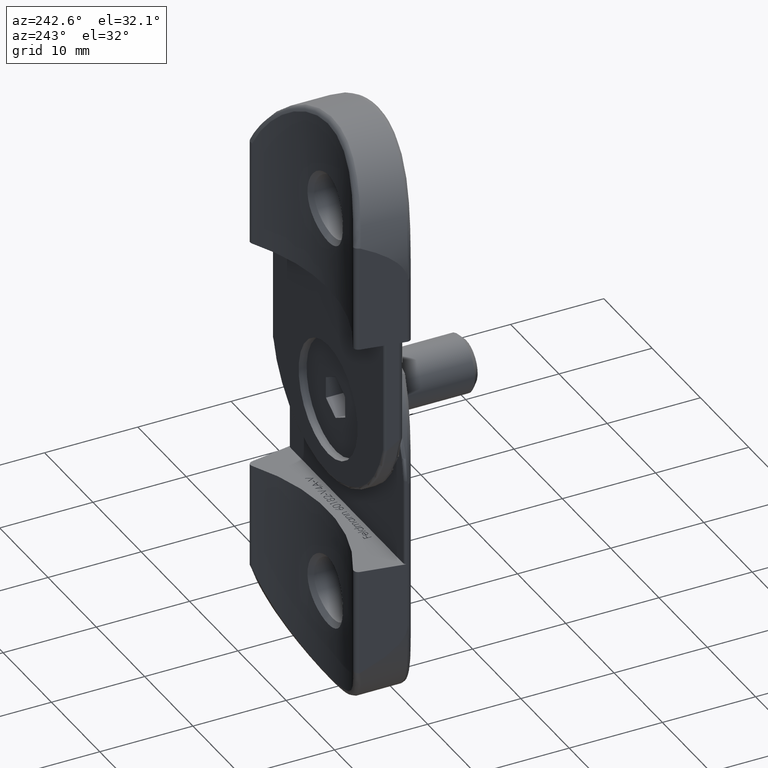
[diagram: clean part render]
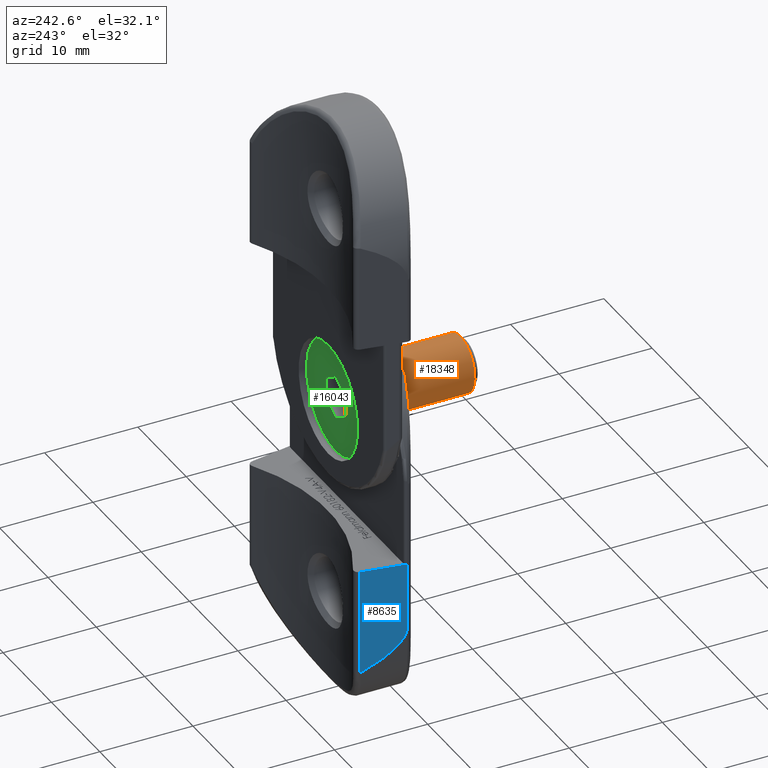
[diagram: same view with three faces highlighted in distinct colors, each labeled with its STEP entity id]
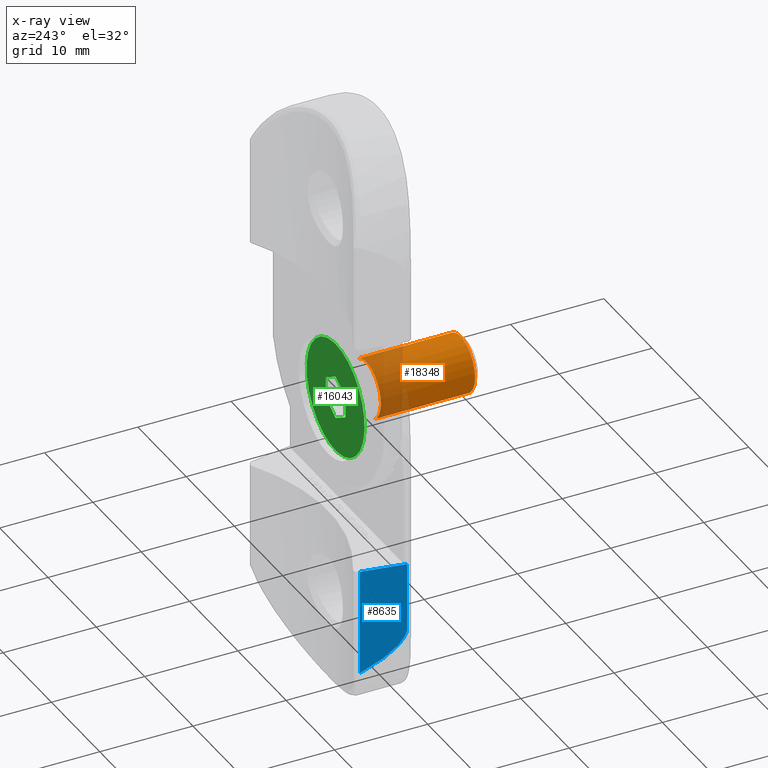
[diagram: x-ray of the same camera — body ghosted, the three highlighted faces saturated]
A machine part, auxiliary view with three faces highlighted in distinct colors.
The next image is the same camera in x-ray (body ghosted, the three faces saturated) — at least one of them is partly hidden behind the body in this view.
Their STEP definitions:

[orange] entity #18348 — the highlighted cylindrical surface (edge-blend (fillet) strip) has radius 3 mm, axis along (-0, 1, 0).
#298 = CIRCLE ( 'NONE', #8305, 2.999999999999996447 ) ;
#476 = ORIENTED_EDGE ( 'NONE', *, *, #12842, .F. ) ;
#634 = DIRECTION ( 'NONE',  ( -0.000000000000000000, 1.224646799147353207E-16, -1.000000000000000000 ) ) ;
#2196 = CIRCLE ( 'NONE', #7456, 2.999999999999992895 ) ;
#2709 = CARTESIAN_POINT ( 'NONE',  ( 3.673940397442055431E-16, -2.999999999999996447, -3.673940397442055431E-16 ) ) ;
#3184 = CARTESIAN_POINT ( 'NONE',  ( 0.000000000000000000, -1.641026710857453312E-15, 13.40000000000000036 ) ) ;
#3425 = ORIENTED_EDGE ( 'NONE', *, *, #16008, .F. ) ;
#3638 = CARTESIAN_POINT ( 'NONE',  ( 0.000000000000000000, 0.000000000000000000, 0.000000000000000000 ) ) ;
#4136 = DIRECTION ( 'NONE',  ( 0.000000000000000000, 1.000000000000000000, 1.445602896647342614E-16 ) ) ;
#4554 = FACE_OUTER_BOUND ( 'NONE', #17416, .T. ) ;
#4648 = VECTOR ( 'NONE', #14553, 1000.000000000000000 ) ;
#6318 = VERTEX_POINT ( 'NONE', #13698 ) ;
#7335 = LINE ( 'NONE', #2709, #4648 ) ;
#7456 = AXIS2_PLACEMENT_3D ( 'NONE', #16165, #7629, #4136 ) ;
#7629 = DIRECTION ( 'NONE',  ( -0.000000000000000000, 1.224646799147353207E-16, -1.000000000000000000 ) ) ;
#8305 = AXIS2_PLACEMENT_3D ( 'NONE', #3184, #8565, #10078 ) ;
#8502 = EDGE_CURVE ( 'NONE', #17872, #6318, #14904, .T. ) ;
#8565 = DIRECTION ( 'NONE',  ( -0.000000000000000000, 1.224646799147353454E-16, -1.000000000000000000 ) ) ;
#10078 = DIRECTION ( 'NONE',  ( 0.000000000000000000, -1.000000000000000000, 0.000000000000000000 ) ) ;
#10155 = VECTOR ( 'NONE', #634, 1000.000000000000000 ) ;
#11441 = ORIENTED_EDGE ( 'NONE', *, *, #18151, .T. ) ;
#12842 = EDGE_CURVE ( 'NONE', #21598, #13877, #7335, .T. ) ;
#13013 = CARTESIAN_POINT ( 'NONE',  ( 3.673940397442056417E-16, -2.999999999999998224, 13.40000000000000036 ) ) ;
#13698 = CARTESIAN_POINT ( 'NONE',  ( 0.000000000000000000, 2.999999999999992450, 3.299999999999998046 ) ) ;
#13744 = CARTESIAN_POINT ( 'NONE',  ( 3.673940397442053459E-16, -2.999999999999993339, 3.299999999999997158 ) ) ;
#13877 = VERTEX_POINT ( 'NONE', #13744 ) ;
#14553 = DIRECTION ( 'NONE',  ( -0.000000000000000000, 1.224646799147353207E-16, -1.000000000000000000 ) ) ;
#14904 = LINE ( 'NONE', #17003, #10155 ) ;
#16008 = EDGE_CURVE ( 'NONE', #13877, #6318, #2196, .T. ) ;
#16165 = CARTESIAN_POINT ( 'NONE',  ( 0.000000000000000000, -4.041334437186262551E-16, 3.299999999999997602 ) ) ;
#17003 = CARTESIAN_POINT ( 'NONE',  ( 0.000000000000000000, 2.999999999999996447, 3.673940397442055431E-16 ) ) ;
#17252 = CYLINDRICAL_SURFACE ( 'NONE', #20325, 2.999999999999996447 ) ;
#17416 = EDGE_LOOP ( 'NONE', ( #476, #11441, #18145, #3425 ) ) ;
#17872 = VERTEX_POINT ( 'NONE', #18908 ) ;
#18145 = ORIENTED_EDGE ( 'NONE', *, *, #8502, .T. ) ;
#18151 = EDGE_CURVE ( 'NONE', #21598, #17872, #298, .T. ) ;
#18348 = ADVANCED_FACE ( 'NONE', ( #4554 ), #17252, .T. ) ;
#18908 = CARTESIAN_POINT ( 'NONE',  ( 0.000000000000000000, 2.999999999999994671, 13.40000000000000036 ) ) ;
#20325 = AXIS2_PLACEMENT_3D ( 'NONE', #3638, #20362, #20572 ) ;
#20362 = DIRECTION ( 'NONE',  ( -0.000000000000000000, 1.224646799147353207E-16, -1.000000000000000000 ) ) ;
#20572 = DIRECTION ( 'NONE',  ( 0.000000000000000000, 1.000000000000000000, 1.224646799147353207E-16 ) ) ;
#21598 = VERTEX_POINT ( 'NONE', #13013 ) ;

[blue] entity #8635 — the highlighted planar face has unit normal (0.9848, -0.1736, 0).
#606 = CARTESIAN_POINT ( 'NONE',  ( 11.99240387650610806, 3.245583679713129222, 7.426906620657627300 ) ) ;
#949 = CARTESIAN_POINT ( 'NONE',  ( 11.17627156864104698, 7.874099999710949760, 11.36522091286671809 ) ) ;
#1041 = CARTESIAN_POINT ( 'NONE',  ( 11.99125585145744388, 3.252094453300075294, 0.000000000000000000 ) ) ;
#1323 = VECTOR ( 'NONE', #21159, 1000.000000000000000 ) ;
#1669 = CARTESIAN_POINT ( 'NONE',  ( 11.18377729768530493, 7.831532895039281073, 11.35007187938070849 ) ) ;
#1712 = CARTESIAN_POINT ( 'NONE',  ( 11.99140904605622104, 3.251225643557166478, -9.316842859180725966 ) ) ;
#2150 = VECTOR ( 'NONE', #3640, 1000.000000000000000 ) ;
#2247 = CARTESIAN_POINT ( 'NONE',  ( 11.99174085408389168, 3.249343866722239405, -9.316446948449293330 ) ) ;
#2309 = ORIENTED_EDGE ( 'NONE', *, *, #11983, .T. ) ;
#2412 = CARTESIAN_POINT ( 'NONE',  ( 11.99125585145744388, 3.252094453300075294, 0.000000000000000000 ) ) ;
#2546 = ORIENTED_EDGE ( 'NONE', *, *, #10085, .T. ) ;
#2979 = CARTESIAN_POINT ( 'NONE',  ( 11.17225821709481259, 7.896860847370852809, 11.36687246722910238 ) ) ;
#3379 = CARTESIAN_POINT ( 'NONE',  ( 11.99189295229135865, 3.248481274923432860, -9.316037376869431341 ) ) ;
#3640 = DIRECTION ( 'NONE',  ( 0.000000000000000000, 0.000000000000000000, -1.000000000000000000 ) ) ;
#5231 = B_SPLINE_CURVE_WITH_KNOTS ( 'NONE', 3,
 ( #5251, #12325, #10723, #3379, #2247, #14105, #1712, #5706, #20922, #11936 ),
 .UNSPECIFIED., .F., .F.,
 ( 4, 3, 3, 4 ),
 ( 8.673617379884035472E-19, 3.520789185538194860E-06, 6.426839419230669921E-06, 7.300392551040201238E-06 ),
 .UNSPECIFIED. ) ;
#5251 = CARTESIAN_POINT ( 'NONE',  ( 11.99240387650610629, 3.245583679713128333, -9.314103764981537026 ) ) ;
#5706 = CARTESIAN_POINT ( 'NONE',  ( 11.99135821657866785, 3.251513911849118532, -9.316875254260967409 ) ) ;
#5734 = VECTOR ( 'NONE', #12417, 1000.000000000000000 ) ;
#5878 = VERTEX_POINT ( 'NONE', #1669 ) ;
#5906 = LINE ( 'NONE', #2412, #1323 ) ;
#6063 = CARTESIAN_POINT ( 'NONE',  ( 11.04724486854863663, 8.605846778190315405, 19.00000000000000000 ) ) ;
#6203 = FACE_OUTER_BOUND ( 'NONE', #19551, .T. ) ;
#6913 = ORIENTED_EDGE ( 'NONE', *, *, #9530, .T. ) ;
#7071 = CARTESIAN_POINT ( 'NONE',  ( 11.99240387650610629, 3.245583679713128333, 19.00000000000000000 ) ) ;
#7200 = CARTESIAN_POINT ( 'NONE',  ( 11.18010637547634545, 7.852351729424181137, 11.35950960312285041 ) ) ;
#7453 = CARTESIAN_POINT ( 'NONE',  ( 11.17225821709481259, 7.896860847370852809, 11.36687246722910238 ) ) ;
#7697 = DIRECTION ( 'NONE',  ( -0.9848077530122085754, -0.1736481776669279165, 0.000000000000000000 ) ) ;
#7787 = VERTEX_POINT ( 'NONE', #11176 ) ;
#8394 = LINE ( 'NONE', #10744, #5734 ) ;
#8555 = VERTEX_POINT ( 'NONE', #1041 ) ;
#8635 = ADVANCED_FACE ( 'NONE', ( #6203 ), #9512, .F. ) ;
#8882 = CARTESIAN_POINT ( 'NONE',  ( 11.99125585145744388, 3.252094453300075294, -9.316890673528464006 ) ) ;
#8937 = CARTESIAN_POINT ( 'NONE',  ( 11.17225821709481259, 7.896860847370852809, 0.000000000000000000 ) ) ;
#9095 = LINE ( 'NONE', #7071, #2150 ) ;
#9512 = PLANE ( 'NONE',  #12142 ) ;
#9530 = EDGE_CURVE ( 'NONE', #5878, #13628, #9698, .T. ) ;
#9534 = B_SPLINE_CURVE_WITH_KNOTS ( 'NONE', 3,
 ( #7453, #949, #7200, #13972 ),
 .UNSPECIFIED., .F., .F.,
 ( 4, 4 ),
 ( 0.000000000000000000, 6.843018577746274298E-05 ),
 .UNSPECIFIED. ) ;
#9698 =( BOUNDED_CURVE ( )  B_SPLINE_CURVE ( 3, ( #15689, #12341, #18872, #17296 ),
 .UNSPECIFIED., .F., .T. ) 
 B_SPLINE_CURVE_WITH_KNOTS ( ( 4, 4 ),
 ( 5.912229931201245847, 6.247602246993458230 ),
 .UNSPECIFIED. ) 
 CURVE ( )  GEOMETRIC_REPRESENTATION_ITEM ( )  RATIONAL_B_SPLINE_CURVE ( ( 1.000000000000000000, 0.9906490596399377679, 0.9906490596399377679, 1.000000000000000000 ) ) 
 REPRESENTATION_ITEM ( '' )  );
#9701 = ORIENTED_EDGE ( 'NONE', *, *, #16533, .T. ) ;
#10085 = EDGE_CURVE ( 'NONE', #7787, #13599, #5231, .T. ) ;
#10723 = CARTESIAN_POINT ( 'NONE',  ( 11.99207755976709677, 3.247434313902512137, -9.315540264005633730 ) ) ;
#10744 = CARTESIAN_POINT ( 'NONE',  ( 11.17225821709481259, 7.896860847370852809, 19.00000000000000000 ) ) ;
#11176 = CARTESIAN_POINT ( 'NONE',  ( 11.99240387650610629, 3.245583679713128333, -9.314103764981537026 ) ) ;
#11936 = CARTESIAN_POINT ( 'NONE',  ( 11.99125585145744388, 3.252094453300075294, -9.316890673528464006 ) ) ;
#11983 = EDGE_CURVE ( 'NONE', #13599, #8555, #5906, .T. ) ;
#12142 = AXIS2_PLACEMENT_3D ( 'NONE', #6063, #7697, #14470 ) ;
#12325 = CARTESIAN_POINT ( 'NONE',  ( 11.99224841747088455, 3.246465331713269453, -9.314862613278492631 ) ) ;
#12341 = CARTESIAN_POINT ( 'NONE',  ( 11.67236817062227949, 5.060596360120618087, 10.09393366738713027 ) ) ;
#12417 = DIRECTION ( 'NONE',  ( -0.000000000000000000, -0.000000000000000000, 1.000000000000000000 ) ) ;
#12583 = EDGE_CURVE ( 'NONE', #16748, #15725, #8394, .T. ) ;
#13599 = VERTEX_POINT ( 'NONE', #8882 ) ;
#13628 = VERTEX_POINT ( 'NONE', #606 ) ;
#13717 = EDGE_CURVE ( 'NONE', #15725, #5878, #9534, .T. ) ;
#13972 = CARTESIAN_POINT ( 'NONE',  ( 11.18377729768530493, 7.831532895039281073, 11.35007187938070849 ) ) ;
#14105 = CARTESIAN_POINT ( 'NONE',  ( 11.99157593222023799, 3.250279185089228751, -9.316736497853899124 ) ) ;
#14435 = EDGE_CURVE ( 'NONE', #8555, #16748, #18064, .T. ) ;
#14470 = DIRECTION ( 'NONE',  ( 0.1736481776669279165, -0.9848077530122085754, 0.000000000000000000 ) ) ;
#15689 = CARTESIAN_POINT ( 'NONE',  ( 11.18377729768530493, 7.831532895039281073, 11.35007187938070849 ) ) ;
#15725 = VERTEX_POINT ( 'NONE', #2979 ) ;
#16533 = EDGE_CURVE ( 'NONE', #13628, #7787, #9095, .T. ) ;
#16748 = VERTEX_POINT ( 'NONE', #8937 ) ;
#17296 = CARTESIAN_POINT ( 'NONE',  ( 11.99240387650610806, 3.245583679713129222, 7.426906620657627300 ) ) ;
#18064 = LINE ( 'NONE', #19007, #18614 ) ;
#18242 = ORIENTED_EDGE ( 'NONE', *, *, #12583, .T. ) ;
#18614 = VECTOR ( 'NONE', #21009, 999.9999999999998863 ) ;
#18872 = CARTESIAN_POINT ( 'NONE',  ( 11.94445462779636458, 3.517517382185024299, 8.773868059710686396 ) ) ;
#19007 = CARTESIAN_POINT ( 'NONE',  ( 11.04724486854863663, 8.605846778190315405, 0.000000000000000000 ) ) ;
#19533 = ORIENTED_EDGE ( 'NONE', *, *, #14435, .T. ) ;
#19551 = EDGE_LOOP ( 'NONE', ( #2309, #19533, #18242, #21288, #6913, #9701, #2546 ) ) ;
#20922 = CARTESIAN_POINT ( 'NONE',  ( 11.99130699113428733, 3.251804425780528529, -9.316891349138876066 ) ) ;
#21009 = DIRECTION ( 'NONE',  ( -0.1736481776669279442, 0.9848077530122085754, -0.000000000000000000 ) ) ;
#21159 = DIRECTION ( 'NONE',  ( 0.000000000000000000, 0.000000000000000000, 1.000000000000000000 ) ) ;
#21288 = ORIENTED_EDGE ( 'NONE', *, *, #13717, .T. ) ;

[green] entity #16043 — the highlighted planar face has unit normal (-0, 1, 0).
#467 = VERTEX_POINT ( 'NONE', #17090 ) ;
#555 = LINE ( 'NONE', #19842, #19116 ) ;
#631 = CARTESIAN_POINT ( 'NONE',  ( -2.309401076758504701, -1.734723475976807094E-15, -7.347880794884121708E-16 ) ) ;
#692 = CARTESIAN_POINT ( 'NONE',  ( 1.154700538379251684, 1.999999999999999112, 0.000000000000000000 ) ) ;
#826 = VERTEX_POINT ( 'NONE', #8448 ) ;
#1758 = ORIENTED_EDGE ( 'NONE', *, *, #16068, .F. ) ;
#1794 = VERTEX_POINT ( 'NONE', #10195 ) ;
#2098 = CARTESIAN_POINT ( 'NONE',  ( 2.309401076758502480, 5.022240126475751519E-17, 0.000000000000000000 ) ) ;
#2470 = ORIENTED_EDGE ( 'NONE', *, *, #17606, .T. ) ;
#2478 = LINE ( 'NONE', #13676, #13324 ) ;
#2500 = CARTESIAN_POINT ( 'NONE',  ( 1.154700538379250574, -2.000000000000000000, -0.000000000000000000 ) ) ;
#2644 = EDGE_CURVE ( 'NONE', #10154, #7657, #555, .T. ) ;
#2645 = CARTESIAN_POINT ( 'NONE',  ( 0.000000000000000000, 6.000000000000000000, -7.347880794884117764E-16 ) ) ;
#2926 = DIRECTION ( 'NONE',  ( -1.000000000000000000, 0.000000000000000000, 0.000000000000000000 ) ) ;
#4057 = DIRECTION ( 'NONE',  ( 0.000000000000000000, 1.000000000000000000, 1.224646799147353207E-16 ) ) ;
#4067 = LINE ( 'NONE', #6653, #5668 ) ;
#5595 = ORIENTED_EDGE ( 'NONE', *, *, #9315, .F. ) ;
#5668 = VECTOR ( 'NONE', #11847, 1000.000000000000114 ) ;
#6137 = ORIENTED_EDGE ( 'NONE', *, *, #18807, .T. ) ;
#6386 = CIRCLE ( 'NONE', #11934, 6.000000000000000000 ) ;
#6406 = CARTESIAN_POINT ( 'NONE',  ( 0.000000000000000000, 1.799711739194228910E-31, -1.469576158976823750E-15 ) ) ;
#6646 = DIRECTION ( 'NONE',  ( -0.000000000000000000, 1.224646799147353207E-16, -1.000000000000000000 ) ) ;
#6653 = CARTESIAN_POINT ( 'NONE',  ( -1.154700538379255015, -2.000000000000000000, 0.000000000000000000 ) ) ;
#7199 = ORIENTED_EDGE ( 'NONE', *, *, #13842, .F. ) ;
#7657 = VERTEX_POINT ( 'NONE', #20748 ) ;
#8180 = EDGE_CURVE ( 'NONE', #9509, #467, #9393, .T. ) ;
#8448 = CARTESIAN_POINT ( 'NONE',  ( 1.154700538379251684, 1.999999999999999112, 0.000000000000000000 ) ) ;
#8481 = CARTESIAN_POINT ( 'NONE',  ( 2.309401076758502480, 5.022240126475751519E-17, 0.000000000000000000 ) ) ;
#8763 = DIRECTION ( 'NONE',  ( 1.000000000000000000, -1.877893248421448296E-16, 0.000000000000000000 ) ) ;
#9315 = EDGE_CURVE ( 'NONE', #14497, #9509, #18315, .T. ) ;
#9393 = LINE ( 'NONE', #2500, #13310 ) ;
#9509 = VERTEX_POINT ( 'NONE', #10358 ) ;
#9850 = VECTOR ( 'NONE', #21902, 1000.000000000000000 ) ;
#10135 = ORIENTED_EDGE ( 'NONE', *, *, #8180, .F. ) ;
#10154 = VERTEX_POINT ( 'NONE', #631 ) ;
#10195 = CARTESIAN_POINT ( 'NONE',  ( 7.347880794884119736E-16, -6.000000000000000000, -2.204364238465235428E-15 ) ) ;
#10347 = AXIS2_PLACEMENT_3D ( 'NONE', #17562, #19581, #4057 ) ;
#10358 = CARTESIAN_POINT ( 'NONE',  ( 1.154700538379250574, -2.000000000000000000, -0.000000000000000000 ) ) ;
#11000 = PLANE ( 'NONE',  #10347 ) ;
#11400 = CIRCLE ( 'NONE', #12834, 6.000000000000000000 ) ;
#11476 = DIRECTION ( 'NONE',  ( -0.000000000000000000, 1.224646799147353207E-16, -1.000000000000000000 ) ) ;
#11716 = VERTEX_POINT ( 'NONE', #2645 ) ;
#11847 = DIRECTION ( 'NONE',  ( -0.4999999999999997780, 0.8660254037844388186, 0.000000000000000000 ) ) ;
#11934 = AXIS2_PLACEMENT_3D ( 'NONE', #13189, #6646, #14992 ) ;
#12834 = AXIS2_PLACEMENT_3D ( 'NONE', #6406, #11476, #18147 ) ;
#13189 = CARTESIAN_POINT ( 'NONE',  ( 0.000000000000000000, 1.799711739194228910E-31, -1.469576158976823750E-15 ) ) ;
#13283 = VECTOR ( 'NONE', #14180, 1000.000000000000000 ) ;
#13310 = VECTOR ( 'NONE', #2926, 1000.000000000000000 ) ;
#13324 = VECTOR ( 'NONE', #8763, 1000.000000000000000 ) ;
#13676 = CARTESIAN_POINT ( 'NONE',  ( -1.154700538379252350, 1.999999999999999556, 0.000000000000000000 ) ) ;
#13796 = ORIENTED_EDGE ( 'NONE', *, *, #14340, .F. ) ;
#13842 = EDGE_CURVE ( 'NONE', #7657, #826, #2478, .T. ) ;
#14180 = DIRECTION ( 'NONE',  ( 0.4999999999999998890, -0.8660254037844387076, 0.000000000000000000 ) ) ;
#14340 = EDGE_CURVE ( 'NONE', #467, #10154, #4067, .T. ) ;
#14410 = FACE_BOUND ( 'NONE', #20040, .T. ) ;
#14497 = VERTEX_POINT ( 'NONE', #2098 ) ;
#14992 = DIRECTION ( 'NONE',  ( 0.000000000000000000, 1.000000000000000000, 1.224646799147353207E-16 ) ) ;
#15201 = FACE_OUTER_BOUND ( 'NONE', #21283, .T. ) ;
#16043 = ADVANCED_FACE ( 'NONE', ( #14410, #15201 ), #11000, .T. ) ;
#16068 = EDGE_CURVE ( 'NONE', #826, #14497, #18870, .T. ) ;
#17090 = CARTESIAN_POINT ( 'NONE',  ( -1.154700538379255015, -2.000000000000000000, 0.000000000000000000 ) ) ;
#17562 = CARTESIAN_POINT ( 'NONE',  ( 0.000000000000000000, 6.000000000000000000, 0.000000000000000000 ) ) ;
#17606 = EDGE_CURVE ( 'NONE', #11716, #1794, #6386, .T. ) ;
#18147 = DIRECTION ( 'NONE',  ( 0.000000000000000000, 1.000000000000000000, 1.224646799147353207E-16 ) ) ;
#18315 = LINE ( 'NONE', #8481, #9850 ) ;
#18807 = EDGE_CURVE ( 'NONE', #1794, #11716, #11400, .T. ) ;
#18870 = LINE ( 'NONE', #692, #13283 ) ;
#19116 = VECTOR ( 'NONE', #21538, 1000.000000000000114 ) ;
#19581 = DIRECTION ( 'NONE',  ( -0.000000000000000000, 1.224646799147353207E-16, -1.000000000000000000 ) ) ;
#19842 = CARTESIAN_POINT ( 'NONE',  ( -2.309401076758504701, -1.752598683377171676E-15, 0.000000000000000000 ) ) ;
#20040 = EDGE_LOOP ( 'NONE', ( #13796, #10135, #5595, #1758, #7199, #21470 ) ) ;
#20748 = CARTESIAN_POINT ( 'NONE',  ( -1.154700538379252350, 1.999999999999999556, 0.000000000000000000 ) ) ;
#21283 = EDGE_LOOP ( 'NONE', ( #2470, #6137 ) ) ;
#21470 = ORIENTED_EDGE ( 'NONE', *, *, #2644, .F. ) ;
#21538 = DIRECTION ( 'NONE',  ( 0.5000000000000001110, 0.8660254037844385966, 0.000000000000000000 ) ) ;
#21902 = DIRECTION ( 'NONE',  ( -0.5000000000000001110, -0.8660254037844385966, -0.000000000000000000 ) ) ;